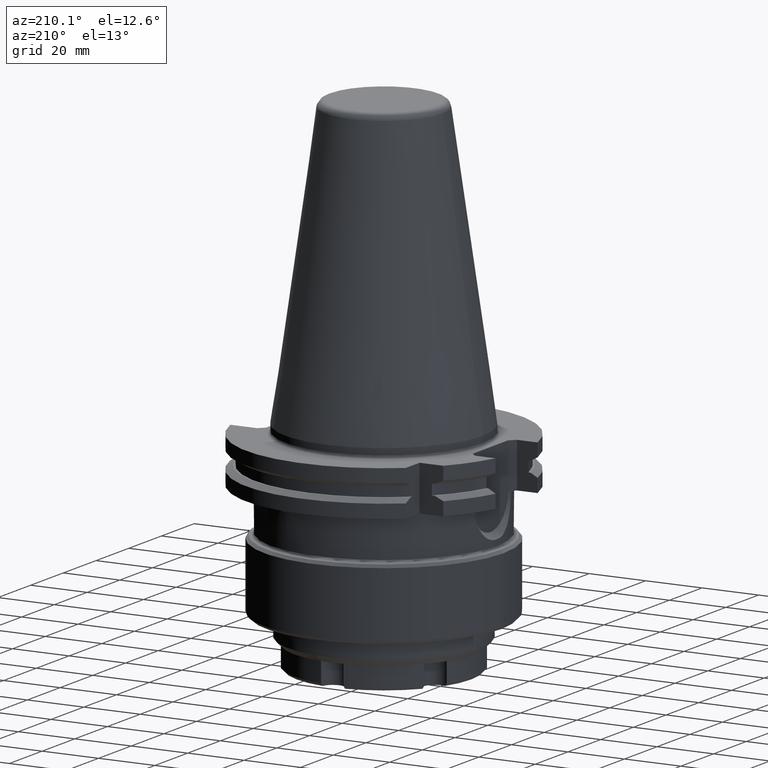
[diagram: clean part render]
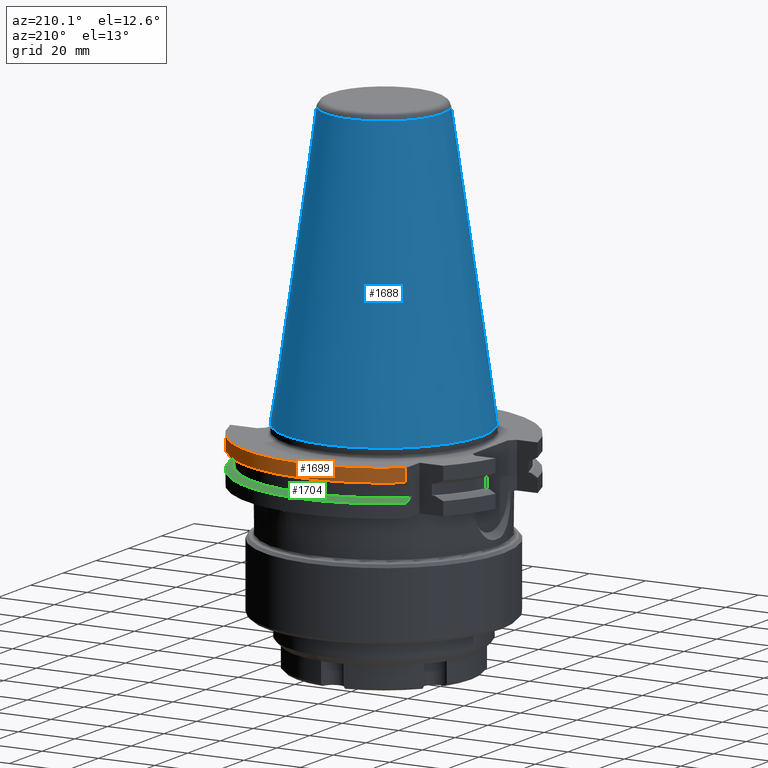
[diagram: same view with three faces highlighted in distinct colors, each labeled with its STEP entity id]
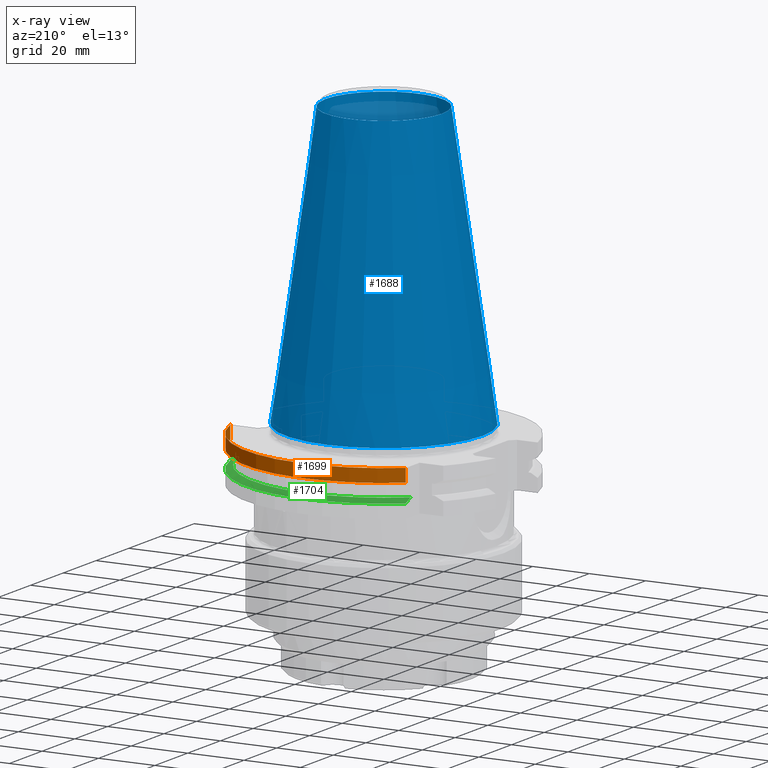
[diagram: x-ray of the same camera — body ghosted, the three highlighted faces saturated]
A machine part, auxiliary view with three faces highlighted in distinct colors.
The next image is the same camera in x-ray (body ghosted, the three faces saturated) — at least one of them is partly hidden behind the body in this view.
Their STEP definitions:

[orange] entity #1699 — the highlighted cylindrical surface (partial cylindrical patch) has radius 48.75 mm, axis along (0, 0, -1).
#100=LINE('',#2839,#202);
#101=LINE('',#2844,#203);
#202=VECTOR('',#2231,1000.);
#203=VECTOR('',#2234,1000.);
#320=CYLINDRICAL_SURFACE('',#1870,48.75);
#576=ORIENTED_EDGE('',*,*,#966,.F.);
#577=ORIENTED_EDGE('',*,*,#967,.T.);
#578=ORIENTED_EDGE('',*,*,#968,.T.);
#579=ORIENTED_EDGE('',*,*,#969,.F.);
#966=EDGE_CURVE('',#1172,#1173,#100,.T.);
#967=EDGE_CURVE('',#1172,#1174,#1302,.T.);
#968=EDGE_CURVE('',#1174,#1175,#101,.T.);
#969=EDGE_CURVE('',#1173,#1175,#1303,.T.);
#1172=VERTEX_POINT('',#2840);
#1173=VERTEX_POINT('',#2841);
#1174=VERTEX_POINT('',#2843);
#1175=VERTEX_POINT('',#2845);
#1302=CIRCLE('',#1871,48.75);
#1303=CIRCLE('',#1872,48.75);
#1403=EDGE_LOOP('',(#576,#577,#578,#579));
#1531=FACE_BOUND('',#1403,.T.);
#1699=ADVANCED_FACE('',(#1531),#320,.T.);
#1870=AXIS2_PLACEMENT_3D('',#2838,#2229,#2230);
#1871=AXIS2_PLACEMENT_3D('',#2842,#2232,#2233);
#1872=AXIS2_PLACEMENT_3D('',#2846,#2235,#2236);
#2229=DIRECTION('',(0.,2.22044604925031E-16,-1.));
#2230=DIRECTION('',(-1.,0.,0.));
#2231=DIRECTION('',(0.,2.22044604925031E-16,-1.));
#2232=DIRECTION('',(0.,2.22044604925031E-16,-1.));
#2233=DIRECTION('',(-1.,0.,0.));
#2234=DIRECTION('',(0.,2.22044604925031E-16,-1.));
#2235=DIRECTION('',(0.,2.22044604925031E-16,-1.));
#2236=DIRECTION('',(-1.,0.,0.));
#2838=CARTESIAN_POINT('',(0.,1.33226762955019E-14,-60.));
#2839=CARTESIAN_POINT('',(-30.,38.4260653723485,-60.));
#2840=CARTESIAN_POINT('',(-30.,38.4260653723485,-3.19999999999999));
#2841=CARTESIAN_POINT('',(-30.,38.4260653723485,-7.85240473580834));
#2842=CARTESIAN_POINT('',(0.,7.10542735760101E-16,-3.2));
#2843=CARTESIAN_POINT('',(47.025950282796,12.85,-3.2));
#2844=CARTESIAN_POINT('',(47.025950282796,12.85,-60.));
#2845=CARTESIAN_POINT('',(47.025950282796,12.85,-7.85240473580835));
#2846=CARTESIAN_POINT('',(0.,1.74358410727401E-15,-7.85240473580835));

[blue] entity #1688 — the highlighted conical surface has half-angle 8.13 deg.
#36=CONICAL_SURFACE('',#1848,34.925,0.141897013516391);
#535=ORIENTED_EDGE('',*,*,#935,.F.);
#536=ORIENTED_EDGE('',*,*,#934,.T.);
#934=EDGE_CURVE('',#1147,#1147,#1290,.F.);
#935=EDGE_CURVE('',#1148,#1148,#1291,.T.);
#1147=VERTEX_POINT('',#2755);
#1148=VERTEX_POINT('',#2758);
#1290=CIRCLE('',#1847,20.695925134736);
#1291=CIRCLE('',#1849,34.925);
#1389=EDGE_LOOP('',(#535));
#1390=EDGE_LOOP('',(#536));
#1517=FACE_BOUND('',#1389,.T.);
#1518=FACE_BOUND('',#1390,.T.);
#1688=ADVANCED_FACE('',(#1517,#1518),#36,.T.);
#1847=AXIS2_PLACEMENT_3D('',#2754,#2168,#2169);
#1848=AXIS2_PLACEMENT_3D('',#2756,#2170,#2171);
#1849=AXIS2_PLACEMENT_3D('',#2757,#2172,#2173);
#2168=DIRECTION('',(0.,-2.22044604925031E-16,1.));
#2169=DIRECTION('',(1.,0.,0.));
#2170=DIRECTION('',(0.,2.22044604925031E-16,-1.));
#2171=DIRECTION('',(-1.,0.,0.));
#2172=DIRECTION('',(0.,2.22044604925031E-16,-1.));
#2173=DIRECTION('',(-1.,0.,0.));
#2754=CARTESIAN_POINT('',(0.,-2.21164316391645E-14,99.6035532889062));
#2755=CARTESIAN_POINT('',(20.695925134736,-2.21164316391645E-14,99.6035532889062));
#2756=CARTESIAN_POINT('',(0.,0.,0.));
#2757=CARTESIAN_POINT('',(0.,0.,0.));
#2758=CARTESIAN_POINT('',(-34.925,0.,0.));

[green] entity #1704 — the highlighted conical surface has half-angle 60 deg.
#40=CONICAL_SURFACE('',#1881,48.75,1.0471975511966);
#284=B_SPLINE_CURVE_WITH_KNOTS('',3,(#2878,#2879,#2880,#2881),
 .UNSPECIFIED.,.F.,.F.,(4,4),(0.0324864821911239,0.0358185379363157),
 .UNSPECIFIED.);
#285=B_SPLINE_CURVE_WITH_KNOTS('',3,(#2883,#2884,#2885,#2886),
 .UNSPECIFIED.,.F.,.F.,(4,4),(0.0178981586960646,0.0207206548456632),
 .UNSPECIFIED.);
#596=ORIENTED_EDGE('',*,*,#982,.F.);
#597=ORIENTED_EDGE('',*,*,#981,.T.);
#598=ORIENTED_EDGE('',*,*,#983,.T.);
#599=ORIENTED_EDGE('',*,*,#984,.F.);
#981=EDGE_CURVE('',#1182,#1183,#1307,.T.);
#982=EDGE_CURVE('',#1182,#1184,#284,.T.);
#983=EDGE_CURVE('',#1183,#1185,#285,.T.);
#984=EDGE_CURVE('',#1184,#1185,#1308,.T.);
#1182=VERTEX_POINT('',#2873);
#1183=VERTEX_POINT('',#2875);
#1184=VERTEX_POINT('',#2882);
#1185=VERTEX_POINT('',#2887);
#1307=CIRCLE('',#1880,46.3747448887957);
#1308=CIRCLE('',#1882,48.75);
#1408=EDGE_LOOP('',(#596,#597,#598,#599));
#1536=FACE_BOUND('',#1408,.T.);
#1704=ADVANCED_FACE('',(#1536),#40,.T.);
#1880=AXIS2_PLACEMENT_3D('',#2876,#2257,#2258);
#1881=AXIS2_PLACEMENT_3D('',#2877,#2259,#2260);
#1882=AXIS2_PLACEMENT_3D('',#2888,#2261,#2262);
#2257=DIRECTION('',(0.,2.22044604925031E-16,-1.));
#2258=DIRECTION('',(-1.,0.,0.));
#2259=DIRECTION('',(0.,2.22044604925031E-16,-1.));
#2260=DIRECTION('',(-1.,0.,0.));
#2261=DIRECTION('',(0.,2.22044604925031E-16,-1.));
#2262=DIRECTION('',(-1.,0.,0.));
#2873=CARTESIAN_POINT('',(-30.,35.3640631644736,-12.9762410863438));
#2875=CARTESIAN_POINT('',(44.5588875927225,12.85,-12.9762410863438));
#2876=CARTESIAN_POINT('',(0.,2.88130432542916E-15,-12.9762410863438));
#2877=CARTESIAN_POINT('',(0.,3.18580612206168E-15,-14.3475952641916));
#2878=CARTESIAN_POINT('',(-30.,35.3640631644736,-12.9762410863438));
#2879=CARTESIAN_POINT('',(-30.,36.3875628466008,-13.4268582283942));
#2880=CARTESIAN_POINT('',(-30.,37.4082671362962,-13.8844125282237));
#2881=CARTESIAN_POINT('',(-30.,38.4260653723485,-14.3475952641916));
#2882=CARTESIAN_POINT('',(-30.,38.4260653723485,-14.3475952641916));
#2883=CARTESIAN_POINT('',(44.5588875927225,12.85,-12.9762410863438));
#2884=CARTESIAN_POINT('',(45.3816279977281,12.85,-13.4326509330609));
#2885=CARTESIAN_POINT('',(46.2039634008729,12.85,-13.889804296534));
#2886=CARTESIAN_POINT('',(47.025950282796,12.85,-14.3475952641916));
#2887=CARTESIAN_POINT('',(47.025950282796,12.85,-14.3475952641916));
#2888=CARTESIAN_POINT('',(0.,3.18580612206168E-15,-14.3475952641916));